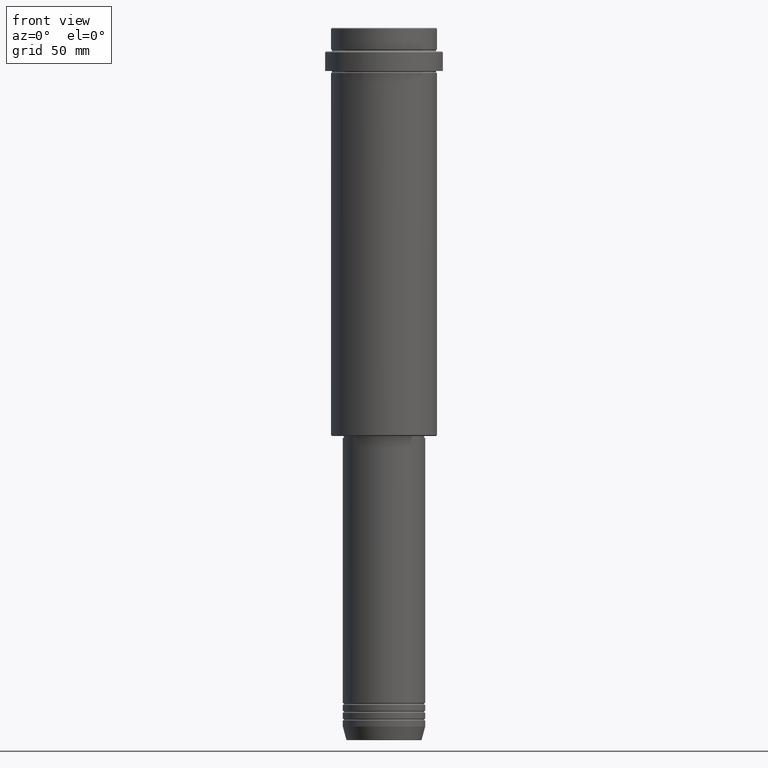
[diagram: clean part render]
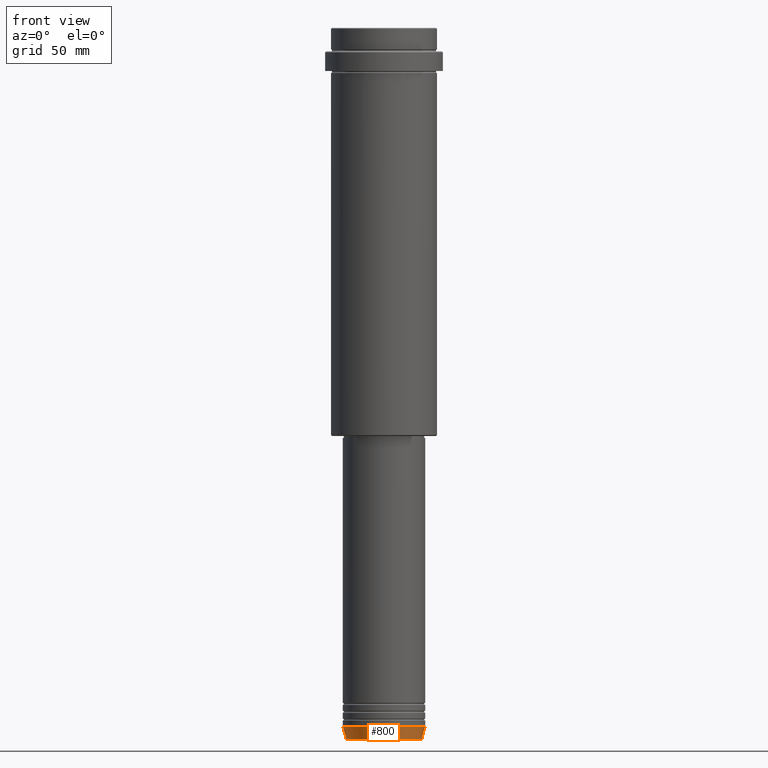
[diagram: same view with one face highlighted and labeled with its STEP entity id]
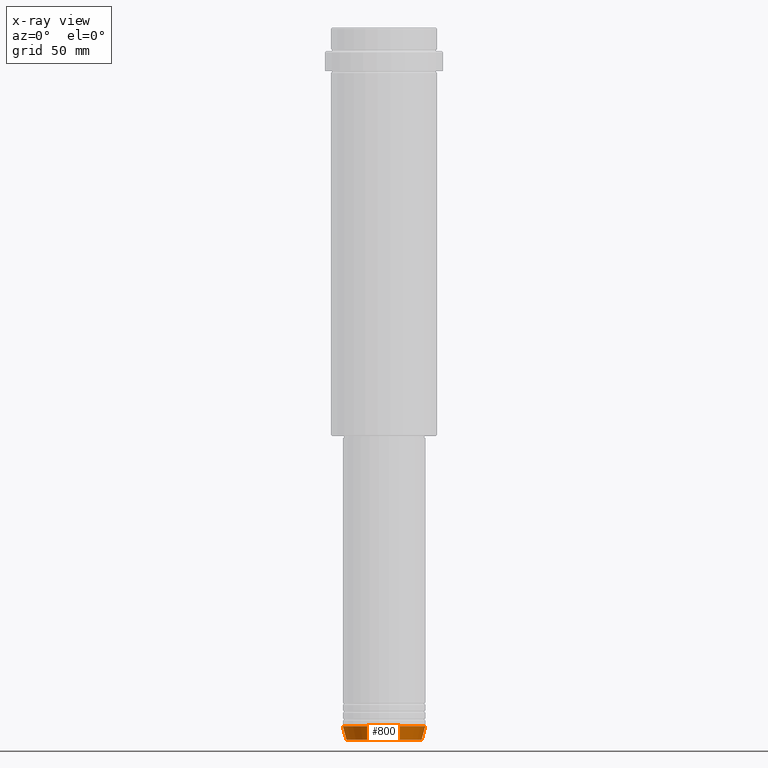
[diagram: x-ray of the same camera — body ghosted, the highlighted face saturated]
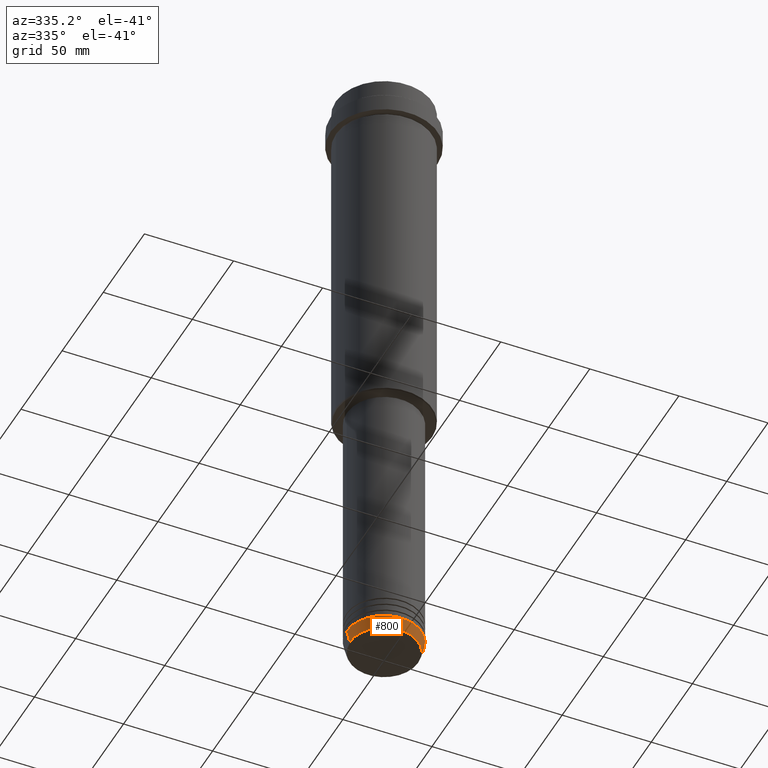
[diagram: same view with one face highlighted and labeled with its STEP entity id]
A machine part, front view. The second image highlights one B-rep face of the part: STEP entity #800.
The next image is the same camera in x-ray: the body ghosted, the highlighted face saturated — about 0% of this face is hidden behind the body in this view.
A second angle (auxiliary view) of the same face is appended — the face is thin or edge-on in the first view.
In plain terms, the highlighted conical surface has half-angle 15 deg.
Its self-contained STEP definition (entity closure, byte-faithful):
#39 = AXIS2_PLACEMENT_3D ( 'NONE', #378, #1343, #820 ) ;
#56 = ORIENTED_EDGE ( 'NONE', *, *, #794, .F. ) ;
#68 = CARTESIAN_POINT ( 'NONE',  ( -19.22365507213718416, 2.462988521705000261E-15, -362.6294095225512706 ) ) ;
#89 = VECTOR ( 'NONE', #613, 1000.000000000000000 ) ;
#177 = DIRECTION ( 'NONE',  ( 1.000000000000000000, 0.000000000000000000, 0.000000000000000000 ) ) ;
#205 = CONICAL_SURFACE ( 'NONE', #39, 21.00000000000000000, 0.2617993877991495744 ) ;
#234 = VERTEX_POINT ( 'NONE', #442 ) ;
#252 = FACE_OUTER_BOUND ( 'NONE', #833, .T. ) ;
#328 = CARTESIAN_POINT ( 'NONE',  ( 0.000000000000000000, 0.000000000000000000, -356.0000000000000568 ) ) ;
#378 = CARTESIAN_POINT ( 'NONE',  ( 0.000000000000000000, 0.000000000000000000, -356.0000000000000568 ) ) ;
#442 = CARTESIAN_POINT ( 'NONE',  ( 19.22365507213718416, 0.000000000000000000, -362.6294095225512706 ) ) ;
#449 = ORIENTED_EDGE ( 'NONE', *, *, #597, .T. ) ;
#469 = CARTESIAN_POINT ( 'NONE',  ( -21.00000000000000000, 2.571758278209441661E-15, -356.0000000000000568 ) ) ;
#497 = LINE ( 'NONE', #1237, #89 ) ;
#528 = VECTOR ( 'NONE', #659, 1000.000000000000000 ) ;
#548 = LINE ( 'NONE', #773, #528 ) ;
#557 = ORIENTED_EDGE ( 'NONE', *, *, #1032, .F. ) ;
#597 = EDGE_CURVE ( 'NONE', #1112, #234, #1182, .T. ) ;
#613 = DIRECTION ( 'NONE',  ( -0.2588190451025209060, 3.169619151431766790E-17, 0.9659258262890682012 ) ) ;
#628 = DIRECTION ( 'NONE',  ( -0.000000000000000000, -0.000000000000000000, 1.000000000000000000 ) ) ;
#659 = DIRECTION ( 'NONE',  ( 0.2588190451025209060, 0.000000000000000000, 0.9659258262890682012 ) ) ;
#699 = VERTEX_POINT ( 'NONE', #1417 ) ;
#741 = AXIS2_PLACEMENT_3D ( 'NONE', #328, #768, #1411 ) ;
#768 = DIRECTION ( 'NONE',  ( -0.000000000000000000, -0.000000000000000000, 1.000000000000000000 ) ) ;
#773 = CARTESIAN_POINT ( 'NONE',  ( 21.00000000000000000, 0.000000000000000000, -356.0000000000000568 ) ) ;
#776 = EDGE_CURVE ( 'NONE', #234, #699, #548, .T. ) ;
#794 = EDGE_CURVE ( 'NONE', #1112, #1160, #497, .T. ) ;
#800 = ADVANCED_FACE ( 'NONE', ( #252 ), #205, .T. ) ;
#820 = DIRECTION ( 'NONE',  ( 1.000000000000000000, 0.000000000000000000, 0.000000000000000000 ) ) ;
#833 = EDGE_LOOP ( 'NONE', ( #56, #449, #1399, #557 ) ) ;
#871 = CARTESIAN_POINT ( 'NONE',  ( 0.000000000000000000, 0.000000000000000000, -362.6294095225512706 ) ) ;
#1032 = EDGE_CURVE ( 'NONE', #1160, #699, #1158, .T. ) ;
#1112 = VERTEX_POINT ( 'NONE', #68 ) ;
#1158 = CIRCLE ( 'NONE', #741, 21.00000000000000000 ) ;
#1160 = VERTEX_POINT ( 'NONE', #469 ) ;
#1182 = CIRCLE ( 'NONE', #1297, 19.22365507213718416 ) ;
#1237 = CARTESIAN_POINT ( 'NONE',  ( -21.00000000000000000, 2.571758278209441661E-15, -356.0000000000000568 ) ) ;
#1297 = AXIS2_PLACEMENT_3D ( 'NONE', #871, #628, #177 ) ;
#1343 = DIRECTION ( 'NONE',  ( -0.000000000000000000, -0.000000000000000000, 1.000000000000000000 ) ) ;
#1399 = ORIENTED_EDGE ( 'NONE', *, *, #776, .T. ) ;
#1411 = DIRECTION ( 'NONE',  ( 1.000000000000000000, 0.000000000000000000, 0.000000000000000000 ) ) ;
#1417 = CARTESIAN_POINT ( 'NONE',  ( 21.00000000000000000, 0.000000000000000000, -356.0000000000000568 ) ) ;